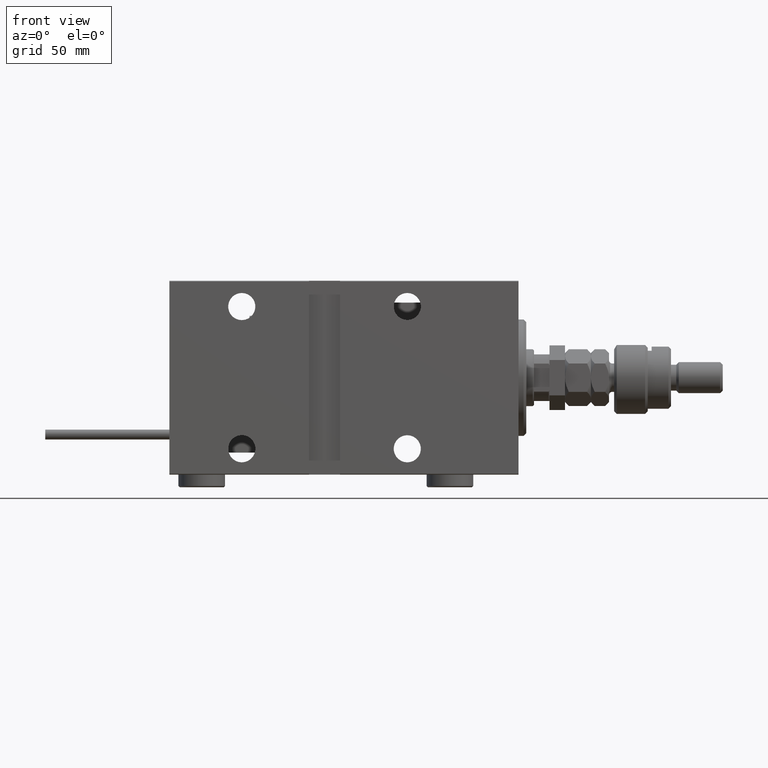
[diagram: clean part render]
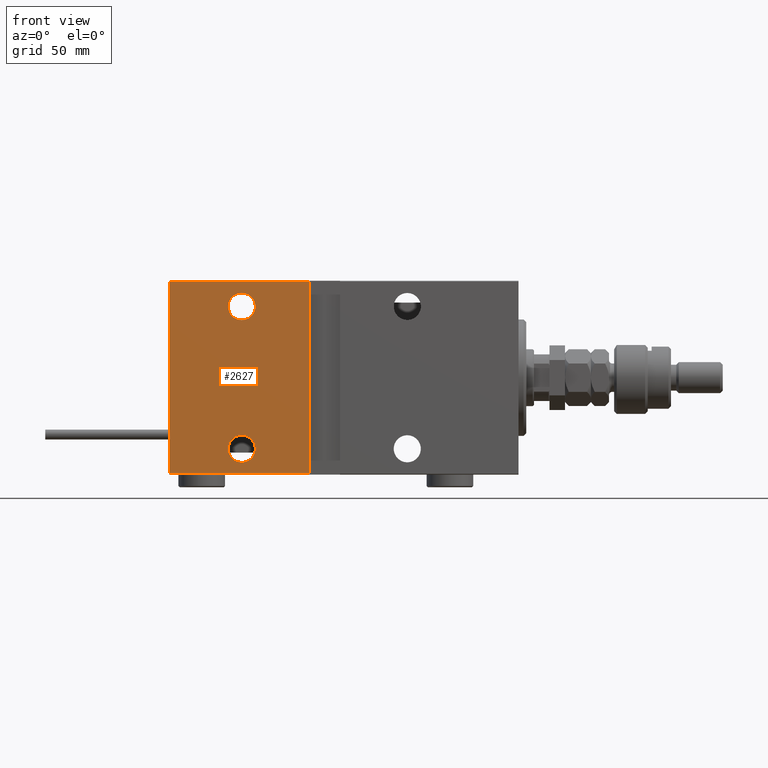
[diagram: same view with one face highlighted and labeled with its STEP entity id]
A machine part, front view. The second image highlights one B-rep face of the part: STEP entity #2627.
In plain terms, the highlighted planar face has unit normal (-0, 1, -0).
Its self-contained STEP definition (entity closure, byte-faithful):
#345 = DIRECTION ( 'NONE',  ( -1.000000000000000000, 0.000000000000000000, 0.000000000000000000 ) ) ;
#532 = EDGE_CURVE ( 'NONE', #16633, #7792, #38509, .T. ) ;
#1002 = EDGE_CURVE ( 'NONE', #16137, #53485, #13477, .T. ) ;
#1653 = CARTESIAN_POINT ( 'NONE',  ( 135.0000000000000000, 27.50000000000000355, -37.50000000000000711 ) ) ;
#2001 = VERTEX_POINT ( 'NONE', #26882 ) ;
#2627 = ADVANCED_FACE ( 'NONE', ( #13627, #22103, #22641 ), #38773, .F. ) ;
#3304 = EDGE_CURVE ( 'NONE', #2001, #11218, #42989, .T. ) ;
#3770 = CARTESIAN_POINT ( 'NONE',  ( 107.0000000000000142, 27.50000000000000355, -32.75000000000000711 ) ) ;
#4931 = LINE ( 'NONE', #33656, #54056 ) ;
#7009 = CARTESIAN_POINT ( 'NONE',  ( 107.0000000000000142, 27.50000000000000355, -22.25000000000000355 ) ) ;
#7051 = CARTESIAN_POINT ( 'NONE',  ( 107.0000000000000142, 27.49999999999999645, 32.74999999999999289 ) ) ;
#7365 = CARTESIAN_POINT ( 'NONE',  ( 107.0000000000000142, 27.49999999999999645, 27.49999999999999289 ) ) ;
#7792 = VERTEX_POINT ( 'NONE', #3770 ) ;
#8286 = DIRECTION ( 'NONE',  ( 0.000000000000000000, 0.000000000000000000, -1.000000000000000000 ) ) ;
#8397 = EDGE_CURVE ( 'NONE', #11218, #2001, #36948, .T. ) ;
#9112 = CARTESIAN_POINT ( 'NONE',  ( 135.0000000000000000, 27.49999999999999645, 37.20000000000002416 ) ) ;
#9145 = CARTESIAN_POINT ( 'NONE',  ( 81.00000000000001421, 27.50000000000000355, -37.50000000000009237 ) ) ;
#9791 = CARTESIAN_POINT ( 'NONE',  ( 135.0000000000000000, 27.50000000000000355, -37.50000000000000711 ) ) ;
#10685 = EDGE_LOOP ( 'NONE', ( #18620, #31923, #48862, #43486 ) ) ;
#10692 = EDGE_CURVE ( 'NONE', #16137, #39393, #18878, .T. ) ;
#11218 = VERTEX_POINT ( 'NONE', #7051 ) ;
#11399 = EDGE_LOOP ( 'NONE', ( #24571, #33625 ) ) ;
#13477 = LINE ( 'NONE', #20883, #35034 ) ;
#13627 = FACE_BOUND ( 'NONE', #17943, .T. ) ;
#13668 = DIRECTION ( 'NONE',  ( 0.000000000000000000, -1.000000000000000000, -9.251858538542970348E-17 ) ) ;
#15571 = DIRECTION ( 'NONE',  ( 0.000000000000000000, -1.000000000000000000, -9.251858538542970348E-17 ) ) ;
#16137 = VERTEX_POINT ( 'NONE', #44580 ) ;
#16443 = DIRECTION ( 'NONE',  ( 1.000000000000000000, 0.000000000000000000, 0.000000000000000000 ) ) ;
#16633 = VERTEX_POINT ( 'NONE', #7009 ) ;
#17659 = VECTOR ( 'NONE', #26114, 1000.000000000000000 ) ;
#17943 = EDGE_LOOP ( 'NONE', ( #33831, #49180 ) ) ;
#18620 = ORIENTED_EDGE ( 'NONE', *, *, #10692, .F. ) ;
#18878 = LINE ( 'NONE', #1653, #42247 ) ;
#20883 = CARTESIAN_POINT ( 'NONE',  ( 135.0000000000000000, 27.50000000000000355, -37.19999999999999574 ) ) ;
#20902 = CARTESIAN_POINT ( 'NONE',  ( 107.0000000000000142, 27.50000000000000355, -27.50000000000000711 ) ) ;
#21175 = DIRECTION ( 'NONE',  ( 0.000000000000000000, -1.000000000000000000, -9.251858538542970348E-17 ) ) ;
#22103 = FACE_BOUND ( 'NONE', #11399, .T. ) ;
#22641 = FACE_OUTER_BOUND ( 'NONE', #10685, .T. ) ;
#23434 = CARTESIAN_POINT ( 'NONE',  ( 107.0000000000000142, 27.50000000000000355, -27.50000000000000711 ) ) ;
#24571 = ORIENTED_EDGE ( 'NONE', *, *, #8397, .T. ) ;
#25535 = DIRECTION ( 'NONE',  ( 0.000000000000000000, 0.000000000000000000, -1.000000000000000000 ) ) ;
#26114 = DIRECTION ( 'NONE',  ( 1.850371707708591851E-16, 9.251858538542959255E-17, -1.000000000000000000 ) ) ;
#26482 = DIRECTION ( 'NONE',  ( 0.000000000000000000, -1.000000000000000000, -9.251858538542970348E-17 ) ) ;
#26790 = CARTESIAN_POINT ( 'NONE',  ( 107.0000000000000142, 27.49999999999999645, 27.49999999999999289 ) ) ;
#26882 = CARTESIAN_POINT ( 'NONE',  ( 107.0000000000000142, 27.49999999999999645, 22.24999999999998934 ) ) ;
#30159 = DIRECTION ( 'NONE',  ( 0.000000000000000000, -1.000000000000000000, -9.251858538542970348E-17 ) ) ;
#31210 = DIRECTION ( 'NONE',  ( 0.000000000000000000, -9.251858538542970348E-17, 1.000000000000000000 ) ) ;
#31439 = DIRECTION ( 'NONE',  ( 0.000000000000000000, 0.000000000000000000, -1.000000000000000000 ) ) ;
#31923 = ORIENTED_EDGE ( 'NONE', *, *, #1002, .T. ) ;
#31942 = EDGE_CURVE ( 'NONE', #38793, #53485, #42762, .T. ) ;
#32844 = AXIS2_PLACEMENT_3D ( 'NONE', #20902, #21175, #25535 ) ;
#33625 = ORIENTED_EDGE ( 'NONE', *, *, #3304, .T. ) ;
#33656 = CARTESIAN_POINT ( 'NONE',  ( 135.0000000000000000, 27.49999999999999645, 37.20000000000002416 ) ) ;
#33831 = ORIENTED_EDGE ( 'NONE', *, *, #532, .T. ) ;
#35034 = VECTOR ( 'NONE', #345, 1000.000000000000000 ) ;
#36948 = CIRCLE ( 'NONE', #43930, 5.250000000000004441 ) ;
#37694 = AXIS2_PLACEMENT_3D ( 'NONE', #9791, #26482, #39311 ) ;
#38509 = CIRCLE ( 'NONE', #52454, 5.250000000000000888 ) ;
#38773 = PLANE ( 'NONE',  #37694 ) ;
#38793 = VERTEX_POINT ( 'NONE', #52813 ) ;
#39311 = DIRECTION ( 'NONE',  ( 0.000000000000000000, 9.251858538542970348E-17, -1.000000000000000000 ) ) ;
#39393 = VERTEX_POINT ( 'NONE', #9112 ) ;
#40343 = EDGE_CURVE ( 'NONE', #7792, #16633, #47639, .T. ) ;
#42247 = VECTOR ( 'NONE', #31210, 1000.000000000000000 ) ;
#42762 = LINE ( 'NONE', #9145, #17659 ) ;
#42856 = CARTESIAN_POINT ( 'NONE',  ( 81.00000000000001421, 27.50000000000000355, -37.19999999999999574 ) ) ;
#42989 = CIRCLE ( 'NONE', #48211, 5.250000000000004441 ) ;
#43486 = ORIENTED_EDGE ( 'NONE', *, *, #50388, .T. ) ;
#43930 = AXIS2_PLACEMENT_3D ( 'NONE', #26790, #13668, #31439 ) ;
#44580 = CARTESIAN_POINT ( 'NONE',  ( 135.0000000000000000, 27.50000000000000355, -37.19999999999999574 ) ) ;
#47639 = CIRCLE ( 'NONE', #32844, 5.250000000000000888 ) ;
#48211 = AXIS2_PLACEMENT_3D ( 'NONE', #7365, #15571, #48903 ) ;
#48862 = ORIENTED_EDGE ( 'NONE', *, *, #31942, .F. ) ;
#48903 = DIRECTION ( 'NONE',  ( 0.000000000000000000, 0.000000000000000000, -1.000000000000000000 ) ) ;
#49180 = ORIENTED_EDGE ( 'NONE', *, *, #40343, .T. ) ;
#50388 = EDGE_CURVE ( 'NONE', #38793, #39393, #4931, .T. ) ;
#52454 = AXIS2_PLACEMENT_3D ( 'NONE', #23434, #30159, #8286 ) ;
#52813 = CARTESIAN_POINT ( 'NONE',  ( 81.00000000000000000, 27.49999999999999645, 37.20000000000003126 ) ) ;
#53485 = VERTEX_POINT ( 'NONE', #42856 ) ;
#54056 = VECTOR ( 'NONE', #16443, 1000.000000000000000 ) ;